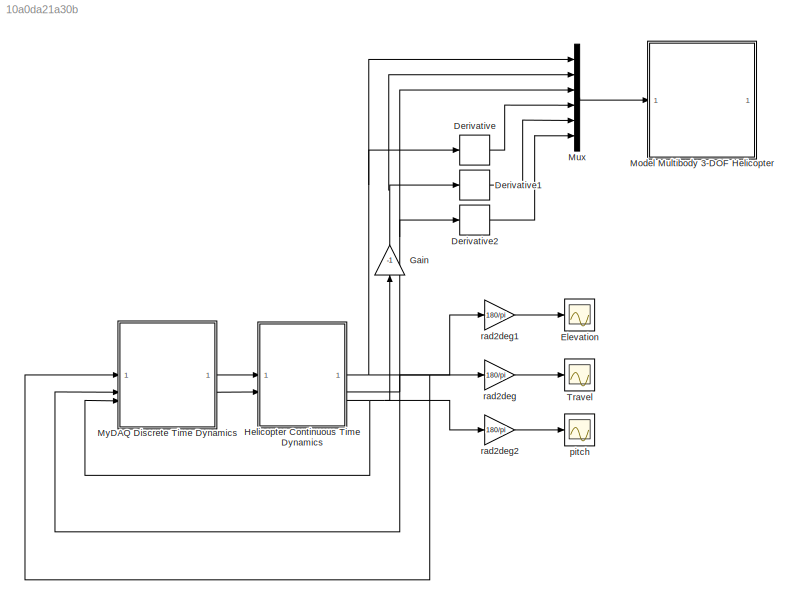
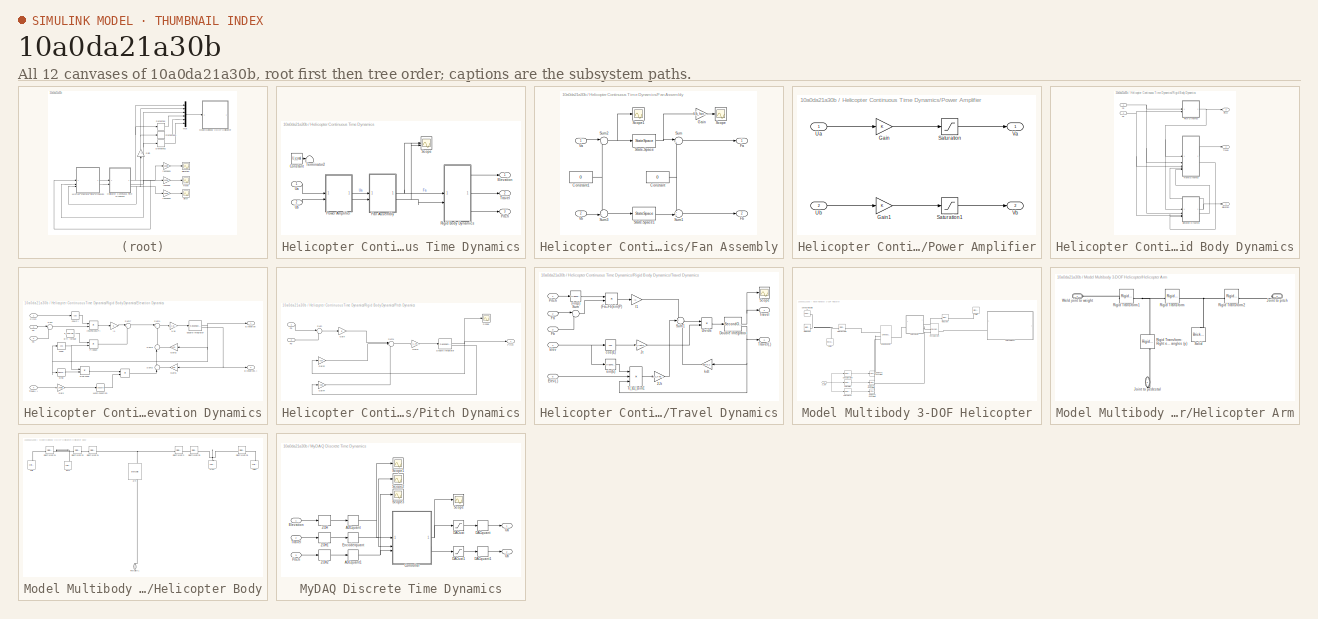
[diagram: thumbnail index - all 12 canvases of the model, root first then tree order]
MODEL slx_10a0da21a30b
KIND model
CONFIG AbsTol = auto
CONFIG EnableMultiTasking = on
CONFIG FixedStep = Ts
CONFIG MaxStep = auto
CONFIG MinStep = auto
CONFIG RelTol = 1e-5
CONFIG SampleTimeConstraint = Unconstrained
CONFIG SolverName = VariableStepAuto
CONFIG StartTime = 0.00
CONFIG StopTime = 60
BLOCK [Derivative] Derivative
  Commented = on
BLOCK [Derivative] Derivative1
  Commented = on
BLOCK [Derivative] Derivative2
  Commented = on
BLOCK [Scope] Elevation
  ActiveDisplayYMaximum = 169.97458635838461
  ActiveDisplayYMinimum = -193.06857315427078
  DataLogging = on
  DataLoggingDecimateData = on
  DataLoggingDecimation = 1
  DataLoggingSaveFormat = Structure With Time
  DataLoggingVariableName = elev
  Floating = off
  GraphicalSettings = {"Style":{"BackgroundColor":[0.12941176470588237,0.12941176470588237,0.12941176470588237],"AxesColor":[0.07058823529411765,0.07058823529411765,0.07058823529411765],"LabelsColor":[0.8509803921568627,0.8509803921568627,0.8509803921568627],"PreserveColors":false,"Visible":[true],"LineStyle":["-"],"LineWidth":[1.5],"BarWidth":[0.9],"LineColor":["auto"],"LineFaceAlpha":[1],"LineEdgeAlpha":[1],"Marker":...<+1967ch>
  MultipleDisplayCache = [{"MaxYLimMag":10,"MaxYLimReal":169.97458635838461,"MinYLimMag":0,"MinYLimReal":-193.06857315427078,"PlotAsMagnitudePhase":false,"ShowGrid":true,"ShowLegend":true,"Title":"%<SignalLabel>","YLabel":""}]
  NumInputPorts = 1
  ScopeFrameLocation = container
  ShowLegend = on
  TimeSpan = 60
  WasSavedAsWebScope = on
  WindowPosition = [320.000000,156.000000,1280.000000,768.000000,]
BLOCK [Gain] Gain
  Commented = on
  Gain = -1
  NameLocation = right
BLOCK [SubSystem] Helicopter Continuous Time Dynamics
BLOCK [Constant] Helicopter Continuous Time Dynamics/Constant
  Value = U_e_real
BLOCK [Outport] Helicopter Continuous Time Dynamics/Elevation
  NameLocation = top
BLOCK [SubSystem] Helicopter Continuous Time Dynamics/Fan Assembly
BLOCK [Constant] Helicopter Continuous Time Dynamics/Fan Assembly/Constant
  Value = 0
BLOCK [Constant] Helicopter Continuous Time Dynamics/Fan Assembly/Constant1
  Value = 0
BLOCK [Outport] Helicopter Continuous Time Dynamics/Fan Assembly/Fa
BLOCK [Outport] Helicopter Continuous Time Dynamics/Fan Assembly/Fb
  Port = 2
BLOCK [Gain] Helicopter Continuous Time Dynamics/Fan Assembly/Gain
  Gain = 1/k_fan * 180/pi
BLOCK [Scope] Helicopter Continuous Time Dynamics/Fan Assembly/Scope
  ActiveDisplayYMaximum = 1.7577416034783149
  ActiveDisplayYMinimum = -0.45366100581419094
  Floating = off
  GraphicalSettings = {"Style":{"BackgroundColor":[0.12941176470588237,0.12941176470588237,0.12941176470588237],"AxesColor":[0.07058823529411765,0.07058823529411765,0.07058823529411765],"LabelsColor":[0.8509803921568627,0.8509803921568627,0.8509803921568627],"PreserveColors":false,"Visible":[true],"LineStyle":["-"],"LineWidth":[1.5],"BarWidth":[0.9],"LineColor":["auto"],"LineFaceAlpha":[1],"LineEdgeAlpha":[1],"Marker":...<+1993ch>
  MultipleDisplayCache = [{"MaxYLimMag":1.7577416034783149,"MaxYLimReal":1.7577416034783149,"MinYLimMag":0,"MinYLimReal":-0.45366100581419094,"PlotAsMagnitudePhase":false,"ShowGrid":true,"ShowLegend":false,"Title":"%<SignalLabel>","YLabel":""}]
  NumInputPorts = 1
  ScopeFrameLocation = window
  WasSavedAsWebScope = on
  WindowPosition = [-1920.000000,25.000000,1921.000000,557.000000,]
BLOCK [Scope] Helicopter Continuous Time Dynamics/Fan Assembly/Scope1
  ActiveDisplayYMaximum = 7.5331444683603781
  ActiveDisplayYMinimum = -4.1681508848464635
  DataLoggingVariableName = ScopeData3
  Floating = off
  GraphicalSettings = {"AxesScalingProperties":{"AlignXAxis":"Center","AlignYAxis":"Center","AutoScaleXAxisLimits":false,"AxesScaling":"Manual","AxesScalingNumUpdates":10,"ExpandOnly":true,"ScaleAxesLimitsAtStop":false,"XAxisDataRange":100,"YAxisDataRange":80},"DisplayProperties":{"ColorOrder":["auto","auto","auto","auto","auto","auto","auto","auto","auto","auto","auto","auto","auto","auto","auto","auto","auto","auto",...<+2008ch>
  MultipleDisplayCache = [{"MaxYLimMag":0.039227171926382989,"MaxYLimReal":7.5331444683603781,"MinYLimMag":0,"MinYLimReal":-4.1681508848464635,"PlotAsMagnitudePhase":false,"ShowGrid":true,"ShowLegend":false,"Title":"%<SignalLabel>","YLabel":""}]
  NumInputPorts = 1
  ScopeFrameLocation = window
  WasSavedAsWebScope = on
  WindowPosition = [406.000000,160.000000,1029.000000,659.000000,]
BLOCK [StateSpace] Helicopter Continuous Time Dynamics/Fan Assembly/State-Space
  A = sys_fan.A
  B = sys_fan.B
  C = sys_fan.C
  D = sys_fan.D
  InitialCondition = 0
BLOCK [StateSpace] Helicopter Continuous Time Dynamics/Fan Assembly/State-Space1
  A = sys_fan.A
  B = sys_fan.B
  C = sys_fan.C
  D = sys_fan.D
  InitialCondition = 0
BLOCK [Sum] Helicopter Continuous Time Dynamics/Fan Assembly/Sum
  Inputs = |++
BLOCK [Sum] Helicopter Continuous Time Dynamics/Fan Assembly/Sum1
  Inputs = ++|
BLOCK [Sum] Helicopter Continuous Time Dynamics/Fan Assembly/Sum2
  Inputs = |+-
BLOCK [Sum] Helicopter Continuous Time Dynamics/Fan Assembly/Sum3
  Inputs = -+|
BLOCK [Inport] Helicopter Continuous Time Dynamics/Fan Assembly/Va
BLOCK [Inport] Helicopter Continuous Time Dynamics/Fan Assembly/Vb
  Port = 2
BLOCK [Outport] Helicopter Continuous Time Dynamics/Pitch
  Port = 3
BLOCK [SubSystem] Helicopter Continuous Time Dynamics/Power Amplifier
BLOCK [Gain] Helicopter Continuous Time Dynamics/Power Amplifier/Gain
BLOCK [Gain] Helicopter Continuous Time Dynamics/Power Amplifier/Gain1
BLOCK [Saturate] Helicopter Continuous Time Dynamics/Power Amplifier/Saturation
  LowerLimit = 0
  UpperLimit = amp_sat_u
BLOCK [Saturate] Helicopter Continuous Time Dynamics/Power Amplifier/Saturation1
  LowerLimit = 0
  UpperLimit = amp_sat_u
BLOCK [Inport] Helicopter Continuous Time Dynamics/Power Amplifier/Ua
BLOCK [Inport] Helicopter Continuous Time Dynamics/Power Amplifier/Ub
  Port = 2
BLOCK [Outport] Helicopter Continuous Time Dynamics/Power Amplifier/Va
BLOCK [Outport] Helicopter Continuous Time Dynamics/Power Amplifier/Vb
  Port = 2
BLOCK [SubSystem] Helicopter Continuous Time Dynamics/Rigid Body Dynamics
BLOCK [Outport] Helicopter Continuous Time Dynamics/Rigid Body Dynamics/Elevation
  NameLocation = top
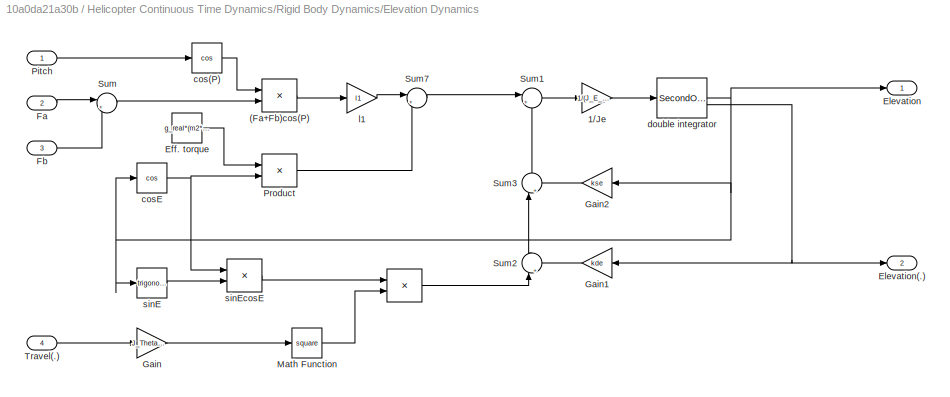
BLOCK [SubSystem] Helicopter Continuous Time Dynamics/Rigid Body Dynamics/Elevation Dynamics
BLOCK [Product] Helicopter Continuous Time Dynamics/Rigid Body Dynamics/Elevation Dynamics/ 
  InputSameDT = on
  OutDataTypeStr = Inherit: Same as first input
  RndMeth = Zero
  SaturateOnIntegerOverflow = on
BLOCK [Product] Helicopter Continuous Time Dynamics/Rigid Body Dynamics/Elevation Dynamics/(Fa+Fb)cos(P)
  InputSameDT = on
  OutDataTypeStr = Inherit: Same as first input
  RndMeth = Zero
  SaturateOnIntegerOverflow = on
BLOCK [Gain] Helicopter Continuous Time Dynamics/Rigid Body Dynamics/Elevation Dynamics/1//Je
  Gain = 1/(J_E_real)
  OutDataTypeStr = Inherit: Same as input
  ParamDataTypeStr = Inherit: Same as input
  SaturateOnIntegerOverflow = on
BLOCK [Constant] Helicopter Continuous Time Dynamics/Rigid Body Dynamics/Elevation Dynamics/Eff. torque
  Value = g_real*(m2*l3-2*m1*l1)
BLOCK [Outport] Helicopter Continuous Time Dynamics/Rigid Body Dynamics/Elevation Dynamics/Elevation
BLOCK [Outport] Helicopter Continuous Time Dynamics/Rigid Body Dynamics/Elevation Dynamics/Elevation(.)
  Port = 2
BLOCK [Inport] Helicopter Continuous Time Dynamics/Rigid Body Dynamics/Elevation Dynamics/Fa
  Port = 2
BLOCK [Inport] Helicopter Continuous Time Dynamics/Rigid Body Dynamics/Elevation Dynamics/Fb
  Port = 3
BLOCK [Gain] Helicopter Continuous Time Dynamics/Rigid Body Dynamics/Elevation Dynamics/Gain
  Gain = J_Theta_real
BLOCK [Gain] Helicopter Continuous Time Dynamics/Rigid Body Dynamics/Elevation Dynamics/Gain1
  Gain = kde
  NameLocation = top
BLOCK [Gain] Helicopter Continuous Time Dynamics/Rigid Body Dynamics/Elevation Dynamics/Gain2
  Gain = kse
  NameLocation = top
BLOCK [Math] Helicopter Continuous Time Dynamics/Rigid Body Dynamics/Elevation Dynamics/Math Function
  Operator = square
  SignedPower = on
BLOCK [Inport] Helicopter Continuous Time Dynamics/Rigid Body Dynamics/Elevation Dynamics/Pitch
BLOCK [Product] Helicopter Continuous Time Dynamics/Rigid Body Dynamics/Elevation Dynamics/Product
  InputSameDT = on
  OutDataTypeStr = Inherit: Same as first input
  RndMeth = Zero
  SaturateOnIntegerOverflow = on
BLOCK [Sum] Helicopter Continuous Time Dynamics/Rigid Body Dynamics/Elevation Dynamics/Sum
  InputSameDT = on
  Inputs = |++
  OutDataTypeStr = Inherit: Same as first input
  SaturateOnIntegerOverflow = on
BLOCK [Sum] Helicopter Continuous Time Dynamics/Rigid Body Dynamics/Elevation Dynamics/Sum1
  InputSameDT = on
  Inputs = |+-
  OutDataTypeStr = Inherit: Same as first input
  SaturateOnIntegerOverflow = on
BLOCK [Sum] Helicopter Continuous Time Dynamics/Rigid Body Dynamics/Elevation Dynamics/Sum2
  Inputs = |++
  NameLocation = right
BLOCK [Sum] Helicopter Continuous Time Dynamics/Rigid Body Dynamics/Elevation Dynamics/Sum3
  Inputs = |++
  NameLocation = right
BLOCK [Sum] Helicopter Continuous Time Dynamics/Rigid Body Dynamics/Elevation Dynamics/Sum7
  InputSameDT = on
  Inputs = |++
  OutDataTypeStr = Inherit: Same as first input
  SaturateOnIntegerOverflow = on
BLOCK [Inport] Helicopter Continuous Time Dynamics/Rigid Body Dynamics/Elevation Dynamics/Travel(.)
  Port = 4
BLOCK [Trigonometry] Helicopter Continuous Time Dynamics/Rigid Body Dynamics/Elevation Dynamics/cos(P)
  Operator = cos
BLOCK [Trigonometry] Helicopter Continuous Time Dynamics/Rigid Body Dynamics/Elevation Dynamics/cosE
  Operator = cos
BLOCK [SecondOrderIntegrator] Helicopter Continuous Time Dynamics/Rigid Body Dynamics/Elevation Dynamics/double integrator
  ICX = E0
  LimitX = on
  LowerLimitDXDT = -2*pi
  LowerLimitX = E0
  UpperLimitDXDT = 2*pi
  UpperLimitX = e_lim_u
BLOCK [Gain] Helicopter Continuous Time Dynamics/Rigid Body Dynamics/Elevation Dynamics/l1
  Gain = l1
  OutDataTypeStr = Inherit: Same as input
  ParamDataTypeStr = Inherit: Same as input
  SaturateOnIntegerOverflow = on
BLOCK [Trigonometry] Helicopter Continuous Time Dynamics/Rigid Body Dynamics/Elevation Dynamics/sinE
BLOCK [Product] Helicopter Continuous Time Dynamics/Rigid Body Dynamics/Elevation Dynamics/sinEcosE
  InputSameDT = on
  OutDataTypeStr = Inherit: Same as first input
  RndMeth = Zero
  SaturateOnIntegerOverflow = on
BLOCK [Inport] Helicopter Continuous Time Dynamics/Rigid Body Dynamics/Fa
BLOCK [Inport] Helicopter Continuous Time Dynamics/Rigid Body Dynamics/Fb
  Port = 2
BLOCK [Outport] Helicopter Continuous Time Dynamics/Rigid Body Dynamics/Pitch
  Port = 3
BLOCK [SubSystem] Helicopter Continuous Time Dynamics/Rigid Body Dynamics/Pitch Dynamics
BLOCK [SecondOrderIntegrator] Helicopter Continuous Time Dynamics/Rigid Body Dynamics/Pitch Dynamics/Double Integrator
  ICX = P0
  LimitX = on
  LowerLimitX = p_lim_l
  UpperLimitX = p_lim_u
BLOCK [Inport] Helicopter Continuous Time Dynamics/Rigid Body Dynamics/Pitch Dynamics/Fa
BLOCK [Inport] Helicopter Continuous Time Dynamics/Rigid Body Dynamics/Pitch Dynamics/Fb
  Port = 2
BLOCK [Gain] Helicopter Continuous Time Dynamics/Rigid Body Dynamics/Pitch Dynamics/Gain
  Gain = l2
BLOCK [Gain] Helicopter Continuous Time Dynamics/Rigid Body Dynamics/Pitch Dynamics/Gain1
  Gain = 1/(J_Psi_real*.05)
BLOCK [Gain] Helicopter Continuous Time Dynamics/Rigid Body Dynamics/Pitch Dynamics/Gain2
  Gain = ksp
BLOCK [Gain] Helicopter Continuous Time Dynamics/Rigid Body Dynamics/Pitch Dynamics/Gain4
  Gain = kdp
BLOCK [Outport] Helicopter Continuous Time Dynamics/Rigid Body Dynamics/Pitch Dynamics/Pitch
BLOCK [Scope] Helicopter Continuous Time Dynamics/Rigid Body Dynamics/Pitch Dynamics/Scope
  ActiveDisplayYMaximum = 1
  ActiveDisplayYMinimum = -1
  DataLoggingVariableName = ScopeData2
  Floating = off
  GraphicalSettings = {"Style":{"BackgroundColor":[0.12941176470588237,0.12941176470588237,0.12941176470588237],"AxesColor":[0.07058823529411765,0.07058823529411765,0.07058823529411765],"LabelsColor":[0.8509803921568627,0.8509803921568627,0.8509803921568627],"PreserveColors":false,"Visible":[true],"LineStyle":["-"],"LineWidth":[1.5],"BarWidth":[0.9],"LineColor":["auto"],"LineFaceAlpha":[1],"LineEdgeAlpha":[1],"Marker":...<+1922ch>
  MultipleDisplayCache = [{"MaxYLimMag":1,"MaxYLimReal":1,"MinYLimMag":0,"MinYLimReal":-1,"PlotAsMagnitudePhase":false,"ShowGrid":true,"ShowLegend":false,"Title":"%<SignalLabel>","YLabel":""}]
  NumInputPorts = 1
  ScopeFrameLocation = window
  WasSavedAsWebScope = on
  WindowPosition = [451.000000,468.000000,560.000000,420.000000,]
BLOCK [Sum] Helicopter Continuous Time Dynamics/Rigid Body Dynamics/Pitch Dynamics/Sum
  Inputs = -+
BLOCK [Sum] Helicopter Continuous Time Dynamics/Rigid Body Dynamics/Pitch Dynamics/Sum1
  Inputs = |---
BLOCK [Outport] Helicopter Continuous Time Dynamics/Rigid Body Dynamics/Travel
  Port = 2
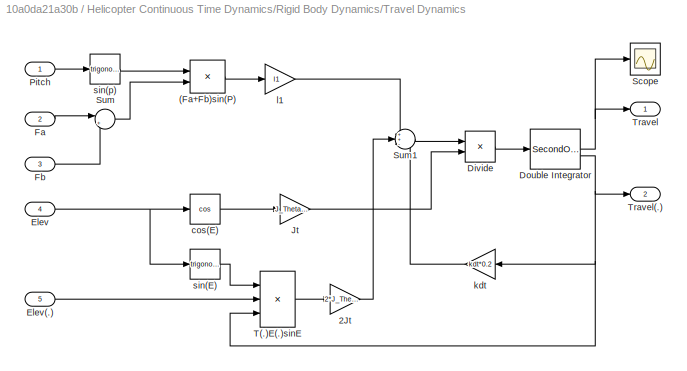
BLOCK [SubSystem] Helicopter Continuous Time Dynamics/Rigid Body Dynamics/Travel Dynamics
BLOCK [Product] Helicopter Continuous Time Dynamics/Rigid Body Dynamics/Travel Dynamics/(Fa+Fb)sin(P)
  InputSameDT = on
  OutDataTypeStr = Inherit: Same as first input
  RndMeth = Zero
  SaturateOnIntegerOverflow = on
BLOCK [Gain] Helicopter Continuous Time Dynamics/Rigid Body Dynamics/Travel Dynamics/2Jt
  Gain = 2*J_Theta_real
  OutDataTypeStr = Inherit: Same as input
  ParamDataTypeStr = Inherit: Same as input
  SaturateOnIntegerOverflow = on
BLOCK [Product] Helicopter Continuous Time Dynamics/Rigid Body Dynamics/Travel Dynamics/Divide
  Inputs = */
BLOCK [SecondOrderIntegrator] Helicopter Continuous Time Dynamics/Rigid Body Dynamics/Travel Dynamics/Double Integrator
  ICX = T0
  LimitDXDT = on
  LowerLimitDXDT = -2
  LowerLimitX = 0
  UpperLimitDXDT = 2
  UpperLimitX = 1
BLOCK [Inport] Helicopter Continuous Time Dynamics/Rigid Body Dynamics/Travel Dynamics/Elev
  Port = 4
BLOCK [Inport] Helicopter Continuous Time Dynamics/Rigid Body Dynamics/Travel Dynamics/Elev(.)
  Port = 5
BLOCK [Inport] Helicopter Continuous Time Dynamics/Rigid Body Dynamics/Travel Dynamics/Fa
  Port = 2
BLOCK [Inport] Helicopter Continuous Time Dynamics/Rigid Body Dynamics/Travel Dynamics/Fb
  Port = 3
BLOCK [Gain] Helicopter Continuous Time Dynamics/Rigid Body Dynamics/Travel Dynamics/Jt
  Gain = J_Theta_real
  OutDataTypeStr = Inherit: Same as input
  ParamDataTypeStr = Inherit: Same as input
  SaturateOnIntegerOverflow = on
BLOCK [Inport] Helicopter Continuous Time Dynamics/Rigid Body Dynamics/Travel Dynamics/Pitch
BLOCK [Scope] Helicopter Continuous Time Dynamics/Rigid Body Dynamics/Travel Dynamics/Scope
  ActiveDisplayYMaximum = 1
  ActiveDisplayYMinimum = -1
  DataLoggingVariableName = ScopeData4
  Floating = off
  GraphicalSettings = {"Style":{"BackgroundColor":[0.12941176470588237,0.12941176470588237,0.12941176470588237],"AxesColor":[0.07058823529411765,0.07058823529411765,0.07058823529411765],"LabelsColor":[0.8509803921568627,0.8509803921568627,0.8509803921568627],"PreserveColors":false,"Visible":[true],"LineStyle":["-"],"LineWidth":[1.5],"BarWidth":[0.9],"LineColor":["auto"],"LineFaceAlpha":[1],"LineEdgeAlpha":[1],"Marker":...<+1920ch>
  MultipleDisplayCache = [{"MaxYLimMag":1,"MaxYLimReal":1,"MinYLimMag":0,"MinYLimReal":-1,"PlotAsMagnitudePhase":false,"ShowGrid":true,"ShowLegend":false,"Title":"%<SignalLabel>","YLabel":""}]
  NumInputPorts = 1
  ScopeFrameLocation = window
  WasSavedAsWebScope = on
  WindowPosition = [712.000000,414.000000,560.000000,420.000000,]
BLOCK [Sum] Helicopter Continuous Time Dynamics/Rigid Body Dynamics/Travel Dynamics/Sum
  InputSameDT = on
  Inputs = |++
  OutDataTypeStr = Inherit: Same as first input
  SaturateOnIntegerOverflow = on
BLOCK [Sum] Helicopter Continuous Time Dynamics/Rigid Body Dynamics/Travel Dynamics/Sum1
  InputSameDT = on
  Inputs = ++-
  OutDataTypeStr = Inherit: Same as first input
  SaturateOnIntegerOverflow = on
BLOCK [Product] Helicopter Continuous Time Dynamics/Rigid Body Dynamics/Travel Dynamics/T(.)E(.)sinE
  InputSameDT = on
  Inputs = 3
  OutDataTypeStr = Inherit: Same as first input
  RndMeth = Zero
  SaturateOnIntegerOverflow = on
BLOCK [Outport] Helicopter Continuous Time Dynamics/Rigid Body Dynamics/Travel Dynamics/Travel
BLOCK [Outport] Helicopter Continuous Time Dynamics/Rigid Body Dynamics/Travel Dynamics/Travel(.)
  Port = 2
BLOCK [Trigonometry] Helicopter Continuous Time Dynamics/Rigid Body Dynamics/Travel Dynamics/cos(E)
  Operator = cos
BLOCK [Gain] Helicopter Continuous Time Dynamics/Rigid Body Dynamics/Travel Dynamics/kdt
  Gain = kdt*0.2
  NameLocation = top
  OutDataTypeStr = Inherit: Same as input
  ParamDataTypeStr = Inherit: Same as input
  SaturateOnIntegerOverflow = on
BLOCK [Gain] Helicopter Continuous Time Dynamics/Rigid Body Dynamics/Travel Dynamics/l1
  Gain = l1
  OutDataTypeStr = Inherit: Same as input
  ParamDataTypeStr = Inherit: Same as input
  SaturateOnIntegerOverflow = on
BLOCK [Trigonometry] Helicopter Continuous Time Dynamics/Rigid Body Dynamics/Travel Dynamics/sin(E)
BLOCK [Trigonometry] Helicopter Continuous Time Dynamics/Rigid Body Dynamics/Travel Dynamics/sin(p)
BLOCK [Scope] Helicopter Continuous Time Dynamics/Scope
  ActiveDisplayYMaximum = 1
  ActiveDisplayYMinimum = -1
  DataLoggingVariableName = ScopeData5
  Floating = off
  GraphicalSettings = {"Style":{"BackgroundColor":[0.12941176470588237,0.12941176470588237,0.12941176470588237],"AxesColor":[0.07058823529411765,0.07058823529411765,0.07058823529411765],"LabelsColor":[0.8509803921568627,0.8509803921568627,0.8509803921568627],"PreserveColors":false,"Visible":[true,true],"LineStyle":["-","-"],"LineWidth":[1.5,1.5],"BarWidth":[0.9,0.9],"LineColor":["auto","auto"],"LineFaceAlpha":[1,1],"Li...<+2129ch>
  MultipleDisplayCache = [{"MaxYLimMag":1,"MaxYLimReal":1,"MinYLimMag":0,"MinYLimReal":-1,"PlotAsMagnitudePhase":false,"ShowGrid":true,"ShowLegend":true,"Title":"%<SignalLabel>","YLabel":""}]
  NumInputPorts = 2
  ScopeFrameLocation = window
  ShowLegend = on
  WasSavedAsWebScope = on
  WindowPosition = [-37.000000,447.000000,1918.000000,501.000000,]
BLOCK [Terminator] Helicopter Continuous Time Dynamics/Terminator2
BLOCK [Outport] Helicopter Continuous Time Dynamics/Travel
  Port = 2
BLOCK [Inport] Helicopter Continuous Time Dynamics/Ua
BLOCK [Inport] Helicopter Continuous Time Dynamics/Ub
  Port = 2
BLOCK [SubSystem] Model Multibody 3-DOF Helicopter
  Commented = on
BLOCK [SubSystem] Model Multibody 3-DOF Helicopter/Helicopter Arm
BLOCK [PMIOPort] Model Multibody 3-DOF Helicopter/Helicopter Arm/Joint to pedestal
  NameLocation = left
  Port = 2
  Side = Right
BLOCK [PMIOPort] Model Multibody 3-DOF Helicopter/Helicopter Arm/Joint to pitch
  NameLocation = top
  Port = 3
  Side = Left
BLOCK [Reference] Model Multibody 3-DOF Helicopter/Helicopter Arm/Rigid Transform  REF=sm_lib/Frames and
Transforms/Rigid
Transform
  SourceBlock = sm_lib/Frames and\nTransforms/Rigid\nTransform
  SourceType = Rigid\nTransform
BLOCK [Reference] Model Multibody 3-DOF Helicopter/Helicopter Arm/Rigid Transform1  REF=sm_lib/Frames and
Transforms/Rigid
Transform
  SourceBlock = sm_lib/Frames and\nTransforms/Rigid\nTransform
  SourceType = Rigid\nTransform
BLOCK [Reference] Model Multibody 3-DOF Helicopter/Helicopter Arm/Rigid Transform2  REF=sm_lib/Frames and
Transforms/Rigid
Transform
  SourceBlock = sm_lib/Frames and\nTransforms/Rigid\nTransform
  SourceType = Rigid\nTransform
BLOCK [Reference] Model Multibody 3-DOF Helicopter/Helicopter Arm/Rigid Transform: Right elevation (x) & Travel angles (y)  REF=sm_lib/Frames and
Transforms/Rigid
Transform
  NameLocation = right
  SourceBlock = sm_lib/Frames and\nTransforms/Rigid\nTransform
  SourceType = Rigid\nTransform
BLOCK [Reference] Model Multibody 3-DOF Helicopter/Helicopter Arm/Solid  REF=sm_lib/Body Elements/Brick Solid
  NameLocation = right
  SourceBlock = sm_lib/Body Elements/Brick Solid
  SourceType = Brick Solid
BLOCK [PMIOPort] Model Multibody 3-DOF Helicopter/Helicopter Arm/Weld joint to weight
  NameLocation = top
  Side = Left
BLOCK [SubSystem] Model Multibody 3-DOF Helicopter/Helicopter Body
BLOCK [Reference] Model Multibody 3-DOF Helicopter/Helicopter Body/Back  REF=sm_lib/Body Elements/Cylindrical Solid
  NameLocation = right
  SourceBlock = sm_lib/Body Elements/Cylindrical Solid
  SourceType = Cylindrical Solid
BLOCK [Reference] Model Multibody 3-DOF Helicopter/Helicopter Body/Front  REF=sm_lib/Body Elements/Cylindrical Solid
  NameLocation = right
  SourceBlock = sm_lib/Body Elements/Cylindrical Solid
  SourceType = Cylindrical Solid
BLOCK [PMIOPort] Model Multibody 3-DOF Helicopter/Helicopter Body/Rho (pitch)1
  NameLocation = right
  Side = Left
BLOCK [Reference] Model Multibody 3-DOF Helicopter/Helicopter Body/Rigid Transform  REF=sm_lib/Frames and
Transforms/Rigid
Transform
  SourceBlock = sm_lib/Frames and\nTransforms/Rigid\nTransform
  SourceType = Rigid\nTransform
BLOCK [Reference] Model Multibody 3-DOF Helicopter/Helicopter Body/Rigid Transform1  REF=sm_lib/Frames and
Transforms/Rigid
Transform
  SourceBlock = sm_lib/Frames and\nTransforms/Rigid\nTransform
  SourceType = Rigid\nTransform
BLOCK [Reference] Model Multibody 3-DOF Helicopter/Helicopter Body/Rigid Transform2  REF=sm_lib/Frames and
Transforms/Rigid
Transform
  SourceBlock = sm_lib/Frames and\nTransforms/Rigid\nTransform
  SourceType = Rigid\nTransform
BLOCK [Reference] Model Multibody 3-DOF Helicopter/Helicopter Body/Rigid Transform3  REF=sm_lib/Frames and
Transforms/Rigid
Transform
  SourceBlock = sm_lib/Frames and\nTransforms/Rigid\nTransform
  SourceType = Rigid\nTransform
BLOCK [Reference] Model Multibody 3-DOF Helicopter/Helicopter Body/Rigid Transform4  REF=sm_lib/Frames and
Transforms/Rigid
Transform
  SourceBlock = sm_lib/Frames and\nTransforms/Rigid\nTransform
  SourceType = Rigid\nTransform
BLOCK [Reference] Model Multibody 3-DOF Helicopter/Helicopter Body/Rigid Transform5  REF=sm_lib/Frames and
Transforms/Rigid
Transform
  SourceBlock = sm_lib/Frames and\nTransforms/Rigid\nTransform
  SourceType = Rigid\nTransform
BLOCK [Reference] Model Multibody 3-DOF Helicopter/Helicopter Body/Solid  REF=sm_lib/Body Elements/Cylindrical Solid
  NameLocation = right
  SourceBlock = sm_lib/Body Elements/Cylindrical Solid
  SourceType = Cylindrical Solid
BLOCK [Reference] Model Multibody 3-DOF Helicopter/Helicopter Body/Solid1  REF=sm_lib/Body Elements/Cylindrical Solid
  NameLocation = right
  SourceBlock = sm_lib/Body Elements/Cylindrical Solid
  SourceType = Cylindrical Solid
BLOCK [Reference] Model Multibody 3-DOF Helicopter/Helicopter Body/arm  REF=sm_lib/Body Elements/Brick Solid
  NameLocation = right
  SourceBlock = sm_lib/Body Elements/Brick Solid
  SourceType = Brick Solid
BLOCK [Reference] Model Multibody 3-DOF Helicopter/Revolute Joint  REF=sm_lib/Joints/Revolute Joint
  SourceBlock = sm_lib/Joints/Revolute Joint
  SourceType = Revolute Joint
BLOCK [Reference] Model Multibody 3-DOF Helicopter/Rigid-Transform  REF=sm_lib/Frames and
Transforms/Rigid
Transform
  SourceBlock = sm_lib/Frames and\nTransforms/Rigid\nTransform
  SourceType = Rigid\nTransform
BLOCK [Selector] Model Multibody 3-DOF Helicopter/Select Elevation
  IndexOptions = Index vector (dialog)
  Indices = 1
  InputPortWidth = 6
  OutputSizes = 1
BLOCK [Selector] Model Multibody 3-DOF Helicopter/Select Pitch
  IndexOptions = Index vector (dialog)
  Indices = 2
  InputPortWidth = 6
  OutputSizes = 1
BLOCK [Selector] Model Multibody 3-DOF Helicopter/Select Travel
  IndexOptions = Index vector (dialog)
  Indices = 3
  InputPortWidth = 6
  OutputSizes = 1
BLOCK [Reference] Model Multibody 3-DOF Helicopter/Simulink-PS Converter2  REF=nesl_utility/Simulink-PS
Converter
  SourceBlock = nesl_utility/Simulink-PS\nConverter
  SourceType = Simulink-PS\nConverter
BLOCK [Reference] Model Multibody 3-DOF Helicopter/Simulink-PS Converter3  REF=nesl_utility/Simulink-PS
Converter
  SourceBlock = nesl_utility/Simulink-PS\nConverter
  SourceType = Simulink-PS\nConverter
BLOCK [Reference] Model Multibody 3-DOF Helicopter/Simulink-PS Converter4  REF=nesl_utility/Simulink-PS
Converter
  SourceBlock = nesl_utility/Simulink-PS\nConverter
  SourceType = Simulink-PS\nConverter
BLOCK [Reference] Model Multibody 3-DOF Helicopter/Solid  REF=sm_lib/Body Elements/Brick Solid
  NameLocation = right
  SourceBlock = sm_lib/Body Elements/Brick Solid
  SourceType = Brick Solid
BLOCK [Reference] Model Multibody 3-DOF Helicopter/Solid1  REF=sm_lib/Body Elements/Revolved Solid
  NameLocation = right
  SourceBlock = sm_lib/Body Elements/Revolved Solid
  SourceType = Revolved Solid
BLOCK [Reference] Model Multibody 3-DOF Helicopter/Solver Configuration  REF=nesl_utility/Solver
Configuration
  SourceBlock = nesl_utility/Solver\nConfiguration
  SourceType = Solver\nConfiguration
BLOCK [Reference] Model Multibody 3-DOF Helicopter/Universal Joint  REF=sm_lib/Joints/Universal
Joint
  SourceBlock = sm_lib/Joints/Universal\nJoint
  SourceType = Universal\nJoint
BLOCK [Reference] Model Multibody 3-DOF Helicopter/Weld Joint  REF=sm_lib/Joints/Weld Joint
  SourceBlock = sm_lib/Joints/Weld Joint
  SourceType = Weld Joint
BLOCK [Reference] Model Multibody 3-DOF Helicopter/World Frame  REF=sm_lib/Frames and
Transforms/World Frame
  SourceBlock = sm_lib/Frames and\nTransforms/World Frame
  SourceType = World Frame
BLOCK [Inport] Model Multibody 3-DOF Helicopter/X_sim
BLOCK [Mux] Mux
  Commented = on
  DisplayOption = bar
  Inputs = 6
BLOCK [SubSystem] MyDAQ Discrete Time Dynamics
BLOCK [Quantizer] MyDAQ Discrete Time Dynamics/ADCquant
  QuantizationInterval = ADC_Vres
  SampleTime = Ts
BLOCK [Quantizer] MyDAQ Discrete Time Dynamics/ADCquant1
  QuantizationInterval = ADC_Vres
  SampleTime = Ts
BLOCK [SubSystem] MyDAQ Discrete Time Dynamics/Controller
  ReferencedSubsystem = MPC
BLOCK [Quantizer] MyDAQ Discrete Time Dynamics/DACquant
  QuantizationInterval = DAC_Vres
  SampleTime = Ts
BLOCK [Quantizer] MyDAQ Discrete Time Dynamics/DACquant1
  QuantizationInterval = DAC_Vres
  SampleTime = Ts
BLOCK [Saturate] MyDAQ Discrete Time Dynamics/DACsat
  LowerLimit = 0
  SampleTime = Ts
  UpperLimit = DAC_lim_u
BLOCK [Saturate] MyDAQ Discrete Time Dynamics/DACsat1
  LowerLimit = 0
  SampleTime = Ts
  UpperLimit = DAC_lim_u
BLOCK [Inport] MyDAQ Discrete Time Dynamics/Elevation
BLOCK [Quantizer] MyDAQ Discrete Time Dynamics/Encoderquant
  QuantizationInterval = Encoder_res
  SampleTime = Ts
BLOCK [Inport] MyDAQ Discrete Time Dynamics/Pitch
  Port = 3
BLOCK [Scope] MyDAQ Discrete Time Dynamics/Scope
  ActiveDisplayYMaximum = 10.706688231224366
  ActiveDisplayYMinimum = -2.6605476935057473
  DataLoggingVariableName = ScopeData1
  Floating = off
  GraphicalSettings = {"AxesScalingProperties":{"AlignXAxis":"Center","AlignYAxis":"Center","AutoScaleXAxisLimits":false,"AxesScaling":"Manual","AxesScalingNumUpdates":10,"ExpandOnly":true,"ScaleAxesLimitsAtStop":false,"XAxisDataRange":100,"YAxisDataRange":80},"DisplayProperties":{"ColorOrder":["auto","auto","auto","auto","auto","auto","auto","auto","auto","auto","auto","auto","auto","auto","auto","auto","auto","auto",...<+2054ch>
  MultipleDisplayCache = [{"MaxYLimMag":8.7581940988062623,"MaxYLimReal":10.706688231224366,"MinYLimMag":1.669263488809076,"MinYLimReal":-2.6605476935057473,"PlotAsMagnitudePhase":false,"ShowGrid":true,"ShowLegend":false,"Title":"%<SignalLabel>","YLabel":""}]
  NumInputPorts = 1
  ScopeFrameLocation = window
  WasSavedAsWebScope = on
  WindowPosition = [376.000000,214.000000,1357.000000,605.000000,]
BLOCK [Scope] MyDAQ Discrete Time Dynamics/Scope1
  ActiveDisplayYMaximum = 1.8291802955314285
  ActiveDisplayYMinimum = -1.3085329717356646
  DataLoggingVariableName = ScopeData2
  Floating = off
  GraphicalSettings = {"Style":{"BackgroundColor":[0.12941176470588237,0.12941176470588237,0.12941176470588237],"AxesColor":[0.07058823529411765,0.07058823529411765,0.07058823529411765],"LabelsColor":[0.8509803921568627,0.8509803921568627,0.8509803921568627],"PreserveColors":false,"Visible":[true],"LineStyle":["-"],"LineWidth":[1.5],"BarWidth":[0.9],"LineColor":["auto"],"LineFaceAlpha":[1],"LineEdgeAlpha":[1],"Marker":...<+2003ch>
  MultipleDisplayCache = [{"MaxYLimMag":0.93423361562523843,"MaxYLimReal":1.8291802955314285,"MinYLimMag":0,"MinYLimReal":-1.3085329717356646,"PlotAsMagnitudePhase":false,"ShowGrid":true,"ShowLegend":false,"Title":"%<SignalLabel>","YLabel":""}]
  NumInputPorts = 1
  ScopeFrameLocation = window
  WasSavedAsWebScope = on
  WindowPosition = [105.000000,396.000000,560.000000,420.000000,]
BLOCK [Scope] MyDAQ Discrete Time Dynamics/Scope2
  ActiveDisplayYMaximum = 1
  ActiveDisplayYMinimum = -1
  DataLoggingVariableName = ScopeData1
  Floating = off
  GraphicalSettings = {"Style":{"BackgroundColor":[0.12941176470588237,0.12941176470588237,0.12941176470588237],"AxesColor":[0.07058823529411765,0.07058823529411765,0.07058823529411765],"LabelsColor":[0.8509803921568627,0.8509803921568627,0.8509803921568627],"PreserveColors":false,"Visible":[true],"LineStyle":["-"],"LineWidth":[1.5],"BarWidth":[0.9],"LineColor":["auto"],"LineFaceAlpha":[1],"LineEdgeAlpha":[1],"Marker":...<+1908ch>
  MultipleDisplayCache = [{"MaxYLimMag":1,"MaxYLimReal":1,"MinYLimMag":0,"MinYLimReal":-1,"PlotAsMagnitudePhase":false,"ShowGrid":true,"ShowLegend":false,"Title":"%<SignalLabel>","YLabel":""}]
  NumInputPorts = 1
  ScopeFrameLocation = window
  WasSavedAsWebScope = on
  WindowPosition = [105.000000,396.000000,560.000000,420.000000,]
BLOCK [Scope] MyDAQ Discrete Time Dynamics/Scope3
  ActiveDisplayYMaximum = 1
  ActiveDisplayYMinimum = -1
  DataLoggingVariableName = ScopeData2
  Floating = off
  GraphicalSettings = {"Style":{"BackgroundColor":[0.12941176470588237,0.12941176470588237,0.12941176470588237],"AxesColor":[0.07058823529411765,0.07058823529411765,0.07058823529411765],"LabelsColor":[0.8509803921568627,0.8509803921568627,0.8509803921568627],"PreserveColors":false,"Visible":[true],"LineStyle":["-"],"LineWidth":[1.5],"BarWidth":[0.9],"LineColor":["auto"],"LineFaceAlpha":[1],"LineEdgeAlpha":[1],"Marker":...<+1902ch>
  MultipleDisplayCache = [{"MaxYLimMag":1,"MaxYLimReal":1,"MinYLimMag":0,"MinYLimReal":-1,"PlotAsMagnitudePhase":false,"ShowGrid":true,"ShowLegend":false,"Title":"%<SignalLabel>","YLabel":""}]
  NumInputPorts = 1
  ScopeFrameLocation = window
  WasSavedAsWebScope = on
  WindowPosition = [105.000000,396.000000,560.000000,420.000000,]
BLOCK [Inport] MyDAQ Discrete Time Dynamics/Travel
  Port = 2
BLOCK [Outport] MyDAQ Discrete Time Dynamics/Ua
BLOCK [Outport] MyDAQ Discrete Time Dynamics/Ub
  Port = 2
BLOCK [ZeroOrderHold] MyDAQ Discrete Time Dynamics/ZOH
  SampleTime = Ts
BLOCK [ZeroOrderHold] MyDAQ Discrete Time Dynamics/ZOH1
  SampleTime = Ts
BLOCK [ZeroOrderHold] MyDAQ Discrete Time Dynamics/ZOH2
  SampleTime = Ts
BLOCK [Scope] Travel
  ActiveDisplayYMaximum = 244.06083414149748
  ActiveDisplayYMinimum = -54.931508741530621
  DataLogging = on
  DataLoggingDecimateData = on
  DataLoggingDecimation = 1
  DataLoggingSaveFormat = Structure With Time
  DataLoggingVariableName = trav
  Floating = off
  GraphicalSettings = {"Style":{"BackgroundColor":[0.12941176470588237,0.12941176470588237,0.12941176470588237],"AxesColor":[0.07058823529411765,0.07058823529411765,0.07058823529411765],"LabelsColor":[0.8509803921568627,0.8509803921568627,0.8509803921568627],"PreserveColors":false,"Visible":[true],"LineStyle":["-"],"LineWidth":[1.5],"BarWidth":[0.9],"LineColor":["auto"],"LineFaceAlpha":[1],"LineEdgeAlpha":[1],"Marker":...<+1999ch>
  MultipleDisplayCache = [{"MaxYLimMag":213.23624642294445,"MaxYLimReal":244.06083414149748,"MinYLimMag":0,"MinYLimReal":-54.931508741530621,"PlotAsMagnitudePhase":false,"ShowGrid":true,"ShowLegend":false,"Title":"%<SignalLabel>","YLabel":""}]
  NumInputPorts = 1
  ScopeFrameLocation = window
  TimeSpan = 60
  WasSavedAsWebScope = on
  WindowPosition = [481.000000,304.000000,958.000000,472.000000,]
BLOCK [Scope] pitch
  ActiveDisplayYMaximum = 197.22827580727838
  ActiveDisplayYMinimum = -104.48552614092141
  DataLogging = on
  DataLoggingDecimateData = on
  DataLoggingDecimation = 1
  DataLoggingSaveFormat = Structure With Time
  DataLoggingVariableName = pitch
  Floating = off
  GraphicalSettings = {"Style":{"BackgroundColor":[0.12941176470588237,0.12941176470588237,0.12941176470588237],"AxesColor":[0.07058823529411765,0.07058823529411765,0.07058823529411765],"LabelsColor":[0.8509803921568627,0.8509803921568627,0.8509803921568627],"PreserveColors":false,"Visible":[true],"LineStyle":["-"],"LineWidth":[1.5],"BarWidth":[0.9],"LineColor":["auto"],"LineFaceAlpha":[1],"LineEdgeAlpha":[1],"Marker":...<+1971ch>
  MultipleDisplayCache = [{"MaxYLimMag":10,"MaxYLimReal":197.22827580727838,"MinYLimMag":0,"MinYLimReal":-104.48552614092141,"PlotAsMagnitudePhase":false,"ShowGrid":true,"ShowLegend":false,"Title":"%<SignalLabel>","YLabel":""}]
  NumInputPorts = 1
  ScopeFrameLocation = window
  TimeSpan = 60
  WasSavedAsWebScope = on
  WindowPosition = [-1918.000000,50.000000,958.000000,484.000000,]
BLOCK [Gain] rad2deg
  Gain = 180/pi
  OutDataTypeStr = Inherit: Same as input
  ParamDataTypeStr = Inherit: Same as input
  SaturateOnIntegerOverflow = on
BLOCK [Gain] rad2deg1
  Gain = 180/pi
  OutDataTypeStr = Inherit: Same as input
  ParamDataTypeStr = Inherit: Same as input
  SaturateOnIntegerOverflow = on
BLOCK [Gain] rad2deg2
  Gain = 180/pi
  OutDataTypeStr = Inherit: Same as input
  ParamDataTypeStr = Inherit: Same as input
  SaturateOnIntegerOverflow = on
LINE Derivative1:1 -> Mux:5
LINE Derivative2:1 -> Mux:6
LINE Derivative:1 -> Mux:4
NET Gain:1 -> Derivative1:1, Mux:2
LINE Helicopter Continuous Time Dynamics/Constant:1 -> Helicopter Continuous Time Dynamics/Terminator2:1
NET Helicopter Continuous Time Dynamics/Fan Assembly/Constant1:1 -> Helicopter Continuous Time Dynamics/Fan Assembly/Sum2:2, Helicopter Continuous Time Dynamics/Fan Assembly/Sum3:1
NET Helicopter Continuous Time Dynamics/Fan Assembly/Constant:1 -> Helicopter Continuous Time Dynamics/Fan Assembly/Sum1:1, Helicopter Continuous Time Dynamics/Fan Assembly/Sum:2
LINE Helicopter Continuous Time Dynamics/Fan Assembly/Gain:1 -> Helicopter Continuous Time Dynamics/Fan Assembly/Scope:1
LINE Helicopter Continuous Time Dynamics/Fan Assembly/State-Space1:1 -> Helicopter Continuous Time Dynamics/Fan Assembly/Sum1:2
NET Helicopter Continuous Time Dynamics/Fan Assembly/State-Space:1 -> Helicopter Continuous Time Dynamics/Fan Assembly/Gain:1, Helicopter Continuous Time Dynamics/Fan Assembly/Sum:1
LINE Helicopter Continuous Time Dynamics/Fan Assembly/Sum1:1 -> Helicopter Continuous Time Dynamics/Fan Assembly/Fb:1
NET Helicopter Continuous Time Dynamics/Fan Assembly/Sum2:1 -> Helicopter Continuous Time Dynamics/Fan Assembly/Scope1:1, Helicopter Continuous Time Dynamics/Fan Assembly/State-Space:1
LINE Helicopter Continuous Time Dynamics/Fan Assembly/Sum3:1 -> Helicopter Continuous Time Dynamics/Fan Assembly/State-Space1:1
LINE Helicopter Continuous Time Dynamics/Fan Assembly/Sum:1 -> Helicopter Continuous Time Dynamics/Fan Assembly/Fa:1
LINE Helicopter Continuous Time Dynamics/Fan Assembly/Va:1 -> Helicopter Continuous Time Dynamics/Fan Assembly/Sum2:1
LINE Helicopter Continuous Time Dynamics/Fan Assembly/Vb:1 -> Helicopter Continuous Time Dynamics/Fan Assembly/Sum3:2
NET Helicopter Continuous Time Dynamics/Fan Assembly:1 -> Helicopter Continuous Time Dynamics/Rigid Body Dynamics:1, Helicopter Continuous Time Dynamics/Scope:1
NET Helicopter Continuous Time Dynamics/Fan Assembly:2 -> Helicopter Continuous Time Dynamics/Rigid Body Dynamics:2, Helicopter Continuous Time Dynamics/Scope:2
LINE Helicopter Continuous Time Dynamics/Power Amplifier/Gain1:1 -> Helicopter Continuous Time Dynamics/Power Amplifier/Saturation1:1
LINE Helicopter Continuous Time Dynamics/Power Amplifier/Gain:1 -> Helicopter Continuous Time Dynamics/Power Amplifier/Saturation:1
LINE Helicopter Continuous Time Dynamics/Power Amplifier/Saturation1:1 -> Helicopter Continuous Time Dynamics/Power Amplifier/Vb:1
LINE Helicopter Continuous Time Dynamics/Power Amplifier/Saturation:1 -> Helicopter Continuous Time Dynamics/Power Amplifier/Va:1
LINE Helicopter Continuous Time Dynamics/Power Amplifier/Ua:1 -> Helicopter Continuous Time Dynamics/Power Amplifier/Gain:1
LINE Helicopter Continuous Time Dynamics/Power Amplifier/Ub:1 -> Helicopter Continuous Time Dynamics/Power Amplifier/Gain1:1
LINE Helicopter Continuous Time Dynamics/Power Amplifier:1 -> Helicopter Continuous Time Dynamics/Fan Assembly:1
LINE Helicopter Continuous Time Dynamics/Power Amplifier:2 -> Helicopter Continuous Time Dynamics/Fan Assembly:2
LINE Helicopter Continuous Time Dynamics/Rigid Body Dynamics/Elevation Dynamics/ :1 -> Helicopter Continuous Time Dynamics/Rigid Body Dynamics/Elevation Dynamics/Sum2:1
LINE Helicopter Continuous Time Dynamics/Rigid Body Dynamics/Elevation Dynamics/(Fa+Fb)cos(P):1 -> Helicopter Continuous Time Dynamics/Rigid Body Dynamics/Elevation Dynamics/l1:1
LINE Helicopter Continuous Time Dynamics/Rigid Body Dynamics/Elevation Dynamics/1//Je:1 -> Helicopter Continuous Time Dynamics/Rigid Body Dynamics/Elevation Dynamics/double integrator:1
LINE Helicopter Continuous Time Dynamics/Rigid Body Dynamics/Elevation Dynamics/Eff. torque:1 -> Helicopter Continuous Time Dynamics/Rigid Body Dynamics/Elevation Dynamics/Product:1
LINE Helicopter Continuous Time Dynamics/Rigid Body Dynamics/Elevation Dynamics/Fa:1 -> Helicopter Continuous Time Dynamics/Rigid Body Dynamics/Elevation Dynamics/Sum:1
LINE Helicopter Continuous Time Dynamics/Rigid Body Dynamics/Elevation Dynamics/Fb:1 -> Helicopter Continuous Time Dynamics/Rigid Body Dynamics/Elevation Dynamics/Sum:2
LINE Helicopter Continuous Time Dynamics/Rigid Body Dynamics/Elevation Dynamics/Gain1:1 -> Helicopter Continuous Time Dynamics/Rigid Body Dynamics/Elevation Dynamics/Sum2:2
LINE Helicopter Continuous Time Dynamics/Rigid Body Dynamics/Elevation Dynamics/Gain2:1 -> Helicopter Continuous Time Dynamics/Rigid Body Dynamics/Elevation Dynamics/Sum3:2
LINE Helicopter Continuous Time Dynamics/Rigid Body Dynamics/Elevation Dynamics/Gain:1 -> Helicopter Continuous Time Dynamics/Rigid Body Dynamics/Elevation Dynamics/Math Function:1
LINE Helicopter Continuous Time Dynamics/Rigid Body Dynamics/Elevation Dynamics/Math Function:1 -> Helicopter Continuous Time Dynamics/Rigid Body Dynamics/Elevation Dynamics/ :2
LINE Helicopter Continuous Time Dynamics/Rigid Body Dynamics/Elevation Dynamics/Pitch:1 -> Helicopter Continuous Time Dynamics/Rigid Body Dynamics/Elevation Dynamics/cos(P):1
LINE Helicopter Continuous Time Dynamics/Rigid Body Dynamics/Elevation Dynamics/Product:1 -> Helicopter Continuous Time Dynamics/Rigid Body Dynamics/Elevation Dynamics/Sum7:2
LINE Helicopter Continuous Time Dynamics/Rigid Body Dynamics/Elevation Dynamics/Sum1:1 -> Helicopter Continuous Time Dynamics/Rigid Body Dynamics/Elevation Dynamics/1//Je:1
LINE Helicopter Continuous Time Dynamics/Rigid Body Dynamics/Elevation Dynamics/Sum2:1 -> Helicopter Continuous Time Dynamics/Rigid Body Dynamics/Elevation Dynamics/Sum3:1
LINE Helicopter Continuous Time Dynamics/Rigid Body Dynamics/Elevation Dynamics/Sum3:1 -> Helicopter Continuous Time Dynamics/Rigid Body Dynamics/Elevation Dynamics/Sum1:2
LINE Helicopter Continuous Time Dynamics/Rigid Body Dynamics/Elevation Dynamics/Sum7:1 -> Helicopter Continuous Time Dynamics/Rigid Body Dynamics/Elevation Dynamics/Sum1:1
LINE Helicopter Continuous Time Dynamics/Rigid Body Dynamics/Elevation Dynamics/Sum:1 -> Helicopter Continuous Time Dynamics/Rigid Body Dynamics/Elevation Dynamics/(Fa+Fb)cos(P):2
LINE Helicopter Continuous Time Dynamics/Rigid Body Dynamics/Elevation Dynamics/Travel(.):1 -> Helicopter Continuous Time Dynamics/Rigid Body Dynamics/Elevation Dynamics/Gain:1
LINE Helicopter Continuous Time Dynamics/Rigid Body Dynamics/Elevation Dynamics/cos(P):1 -> Helicopter Continuous Time Dynamics/Rigid Body Dynamics/Elevation Dynamics/(Fa+Fb)cos(P):1
NET Helicopter Continuous Time Dynamics/Rigid Body Dynamics/Elevation Dynamics/cosE:1 -> Helicopter Continuous Time Dynamics/Rigid Body Dynamics/Elevation Dynamics/Product:2, Helicopter Continuous Time Dynamics/Rigid Body Dynamics/Elevation Dynamics/sinEcosE:1
NET Helicopter Continuous Time Dynamics/Rigid Body Dynamics/Elevation Dynamics/double integrator:1 -> Helicopter Continuous Time Dynamics/Rigid Body Dynamics/Elevation Dynamics/Elevation:1, Helicopter Continuous Time Dynamics/Rigid Body Dynamics/Elevation Dynamics/Gain2:1, Helicopter Continuous Time Dynamics/Rigid Body Dynamics/Elevation Dynamics/cosE:1, Helicopter Continuous Time Dynamics/Rigid Body Dynamics/Elevation Dynamics/sinE:1
NET Helicopter Continuous Time Dynamics/Rigid Body Dynamics/Elevation Dynamics/double integrator:2 -> Helicopter Continuous Time Dynamics/Rigid Body Dynamics/Elevation Dynamics/Elevation(.):1, Helicopter Continuous Time Dynamics/Rigid Body Dynamics/Elevation Dynamics/Gain1:1
LINE Helicopter Continuous Time Dynamics/Rigid Body Dynamics/Elevation Dynamics/l1:1 -> Helicopter Continuous Time Dynamics/Rigid Body Dynamics/Elevation Dynamics/Sum7:1
LINE Helicopter Continuous Time Dynamics/Rigid Body Dynamics/Elevation Dynamics/sinE:1 -> Helicopter Continuous Time Dynamics/Rigid Body Dynamics/Elevation Dynamics/sinEcosE:2
LINE Helicopter Continuous Time Dynamics/Rigid Body Dynamics/Elevation Dynamics/sinEcosE:1 -> Helicopter Continuous Time Dynamics/Rigid Body Dynamics/Elevation Dynamics/ :1
NET Helicopter Continuous Time Dynamics/Rigid Body Dynamics/Elevation Dynamics:1 -> Helicopter Continuous Time Dynamics/Rigid Body Dynamics/Elevation:1, Helicopter Continuous Time Dynamics/Rigid Body Dynamics/Travel Dynamics:4
LINE Helicopter Continuous Time Dynamics/Rigid Body Dynamics/Elevation Dynamics:2 -> Helicopter Continuous Time Dynamics/Rigid Body Dynamics/Travel Dynamics:5
NET Helicopter Continuous Time Dynamics/Rigid Body Dynamics/Fa:1 -> Helicopter Continuous Time Dynamics/Rigid Body Dynamics/Elevation Dynamics:2, Helicopter Continuous Time Dynamics/Rigid Body Dynamics/Pitch Dynamics:1, Helicopter Continuous Time Dynamics/Rigid Body Dynamics/Travel Dynamics:2
NET Helicopter Continuous Time Dynamics/Rigid Body Dynamics/Fb:1 -> Helicopter Continuous Time Dynamics/Rigid Body Dynamics/Elevation Dynamics:3, Helicopter Continuous Time Dynamics/Rigid Body Dynamics/Pitch Dynamics:2, Helicopter Continuous Time Dynamics/Rigid Body Dynamics/Travel Dynamics:3
NET Helicopter Continuous Time Dynamics/Rigid Body Dynamics/Pitch Dynamics/Double Integrator:1 -> Helicopter Continuous Time Dynamics/Rigid Body Dynamics/Pitch Dynamics/Gain2:1, Helicopter Continuous Time Dynamics/Rigid Body Dynamics/Pitch Dynamics/Pitch:1, Helicopter Continuous Time Dynamics/Rigid Body Dynamics/Pitch Dynamics/Scope:1
LINE Helicopter Continuous Time Dynamics/Rigid Body Dynamics/Pitch Dynamics/Double Integrator:2 -> Helicopter Continuous Time Dynamics/Rigid Body Dynamics/Pitch Dynamics/Gain4:1
LINE Helicopter Continuous Time Dynamics/Rigid Body Dynamics/Pitch Dynamics/Fa:1 -> Helicopter Continuous Time Dynamics/Rigid Body Dynamics/Pitch Dynamics/Sum:1
LINE Helicopter Continuous Time Dynamics/Rigid Body Dynamics/Pitch Dynamics/Fb:1 -> Helicopter Continuous Time Dynamics/Rigid Body Dynamics/Pitch Dynamics/Sum:2
LINE Helicopter Continuous Time Dynamics/Rigid Body Dynamics/Pitch Dynamics/Gain1:1 -> Helicopter Continuous Time Dynamics/Rigid Body Dynamics/Pitch Dynamics/Double Integrator:1
LINE Helicopter Continuous Time Dynamics/Rigid Body Dynamics/Pitch Dynamics/Gain2:1 -> Helicopter Continuous Time Dynamics/Rigid Body Dynamics/Pitch Dynamics/Sum1:2
LINE Helicopter Continuous Time Dynamics/Rigid Body Dynamics/Pitch Dynamics/Gain4:1 -> Helicopter Continuous Time Dynamics/Rigid Body Dynamics/Pitch Dynamics/Sum1:3
LINE Helicopter Continuous Time Dynamics/Rigid Body Dynamics/Pitch Dynamics/Gain:1 -> Helicopter Continuous Time Dynamics/Rigid Body Dynamics/Pitch Dynamics/Sum1:1
LINE Helicopter Continuous Time Dynamics/Rigid Body Dynamics/Pitch Dynamics/Sum1:1 -> Helicopter Continuous Time Dynamics/Rigid Body Dynamics/Pitch Dynamics/Gain1:1
LINE Helicopter Continuous Time Dynamics/Rigid Body Dynamics/Pitch Dynamics/Sum:1 -> Helicopter Continuous Time Dynamics/Rigid Body Dynamics/Pitch Dynamics/Gain:1
NET Helicopter Continuous Time Dynamics/Rigid Body Dynamics/Pitch Dynamics:1 -> Helicopter Continuous Time Dynamics/Rigid Body Dynamics/Elevation Dynamics:1, Helicopter Continuous Time Dynamics/Rigid Body Dynamics/Pitch:1, Helicopter Continuous Time Dynamics/Rigid Body Dynamics/Travel Dynamics:1
LINE Helicopter Continuous Time Dynamics/Rigid Body Dynamics/Travel Dynamics/(Fa+Fb)sin(P):1 -> Helicopter Continuous Time Dynamics/Rigid Body Dynamics/Travel Dynamics/l1:1
LINE Helicopter Continuous Time Dynamics/Rigid Body Dynamics/Travel Dynamics/2Jt:1 -> Helicopter Continuous Time Dynamics/Rigid Body Dynamics/Travel Dynamics/Sum1:2
LINE Helicopter Continuous Time Dynamics/Rigid Body Dynamics/Travel Dynamics/Divide:1 -> Helicopter Continuous Time Dynamics/Rigid Body Dynamics/Travel Dynamics/Double Integrator:1
NET Helicopter Continuous Time Dynamics/Rigid Body Dynamics/Travel Dynamics/Double Integrator:1 -> Helicopter Continuous Time Dynamics/Rigid Body Dynamics/Travel Dynamics/Scope:1, Helicopter Continuous Time Dynamics/Rigid Body Dynamics/Travel Dynamics/Travel:1
NET Helicopter Continuous Time Dynamics/Rigid Body Dynamics/Travel Dynamics/Double Integrator:2 -> Helicopter Continuous Time Dynamics/Rigid Body Dynamics/Travel Dynamics/T(.)E(.)sinE:3, Helicopter Continuous Time Dynamics/Rigid Body Dynamics/Travel Dynamics/Travel(.):1, Helicopter Continuous Time Dynamics/Rigid Body Dynamics/Travel Dynamics/kdt:1
LINE Helicopter Continuous Time Dynamics/Rigid Body Dynamics/Travel Dynamics/Elev(.):1 -> Helicopter Continuous Time Dynamics/Rigid Body Dynamics/Travel Dynamics/T(.)E(.)sinE:2
NET Helicopter Continuous Time Dynamics/Rigid Body Dynamics/Travel Dynamics/Elev:1 -> Helicopter Continuous Time Dynamics/Rigid Body Dynamics/Travel Dynamics/cos(E):1, Helicopter Continuous Time Dynamics/Rigid Body Dynamics/Travel Dynamics/sin(E):1
LINE Helicopter Continuous Time Dynamics/Rigid Body Dynamics/Travel Dynamics/Fa:1 -> Helicopter Continuous Time Dynamics/Rigid Body Dynamics/Travel Dynamics/Sum:1
LINE Helicopter Continuous Time Dynamics/Rigid Body Dynamics/Travel Dynamics/Fb:1 -> Helicopter Continuous Time Dynamics/Rigid Body Dynamics/Travel Dynamics/Sum:2
LINE Helicopter Continuous Time Dynamics/Rigid Body Dynamics/Travel Dynamics/Jt:1 -> Helicopter Continuous Time Dynamics/Rigid Body Dynamics/Travel Dynamics/Divide:2
LINE Helicopter Continuous Time Dynamics/Rigid Body Dynamics/Travel Dynamics/Pitch:1 -> Helicopter Continuous Time Dynamics/Rigid Body Dynamics/Travel Dynamics/sin(p):1
LINE Helicopter Continuous Time Dynamics/Rigid Body Dynamics/Travel Dynamics/Sum1:1 -> Helicopter Continuous Time Dynamics/Rigid Body Dynamics/Travel Dynamics/Divide:1
LINE Helicopter Continuous Time Dynamics/Rigid Body Dynamics/Travel Dynamics/Sum:1 -> Helicopter Continuous Time Dynamics/Rigid Body Dynamics/Travel Dynamics/(Fa+Fb)sin(P):2
LINE Helicopter Continuous Time Dynamics/Rigid Body Dynamics/Travel Dynamics/T(.)E(.)sinE:1 -> Helicopter Continuous Time Dynamics/Rigid Body Dynamics/Travel Dynamics/2Jt:1
LINE Helicopter Continuous Time Dynamics/Rigid Body Dynamics/Travel Dynamics/cos(E):1 -> Helicopter Continuous Time Dynamics/Rigid Body Dynamics/Travel Dynamics/Jt:1
LINE Helicopter Continuous Time Dynamics/Rigid Body Dynamics/Travel Dynamics/kdt:1 -> Helicopter Continuous Time Dynamics/Rigid Body Dynamics/Travel Dynamics/Sum1:3
LINE Helicopter Continuous Time Dynamics/Rigid Body Dynamics/Travel Dynamics/l1:1 -> Helicopter Continuous Time Dynamics/Rigid Body Dynamics/Travel Dynamics/Sum1:1
LINE Helicopter Continuous Time Dynamics/Rigid Body Dynamics/Travel Dynamics/sin(E):1 -> Helicopter Continuous Time Dynamics/Rigid Body Dynamics/Travel Dynamics/T(.)E(.)sinE:1
LINE Helicopter Continuous Time Dynamics/Rigid Body Dynamics/Travel Dynamics/sin(p):1 -> Helicopter Continuous Time Dynamics/Rigid Body Dynamics/Travel Dynamics/(Fa+Fb)sin(P):1
LINE Helicopter Continuous Time Dynamics/Rigid Body Dynamics/Travel Dynamics:1 -> Helicopter Continuous Time Dynamics/Rigid Body Dynamics/Travel:1
LINE Helicopter Continuous Time Dynamics/Rigid Body Dynamics/Travel Dynamics:2 -> Helicopter Continuous Time Dynamics/Rigid Body Dynamics/Elevation Dynamics:4
LINE Helicopter Continuous Time Dynamics/Rigid Body Dynamics:1 -> Helicopter Continuous Time Dynamics/Elevation:1
LINE Helicopter Continuous Time Dynamics/Rigid Body Dynamics:2 -> Helicopter Continuous Time Dynamics/Travel:1
LINE Helicopter Continuous Time Dynamics/Rigid Body Dynamics:3 -> Helicopter Continuous Time Dynamics/Pitch:1
LINE Helicopter Continuous Time Dynamics/Ua:1 -> Helicopter Continuous Time Dynamics/Power Amplifier:1
LINE Helicopter Continuous Time Dynamics/Ub:1 -> Helicopter Continuous Time Dynamics/Power Amplifier:2
NET Helicopter Continuous Time Dynamics:1 -> Derivative:1, Mux:1, MyDAQ Discrete Time Dynamics:1, rad2deg1:1
NET Helicopter Continuous Time Dynamics:2 -> Derivative2:1, Mux:3, MyDAQ Discrete Time Dynamics:2, rad2deg:1
NET Helicopter Continuous Time Dynamics:3 -> Gain:1, MyDAQ Discrete Time Dynamics:3, rad2deg2:1
LINE Model Multibody 3-DOF Helicopter/Select Elevation:1 -> Model Multibody 3-DOF Helicopter/Simulink-PS Converter2:1
LINE Model Multibody 3-DOF Helicopter/Select Pitch:1 -> Model Multibody 3-DOF Helicopter/Simulink-PS Converter4:1
LINE Model Multibody 3-DOF Helicopter/Select Travel:1 -> Model Multibody 3-DOF Helicopter/Simulink-PS Converter3:1
NET Model Multibody 3-DOF Helicopter/X_sim:1 -> Model Multibody 3-DOF Helicopter/Select Elevation:1, Model Multibody 3-DOF Helicopter/Select Pitch:1, Model Multibody 3-DOF Helicopter/Select Travel:1
LINE Mux:1 -> Model Multibody 3-DOF Helicopter:1
NET MyDAQ Discrete Time Dynamics/ADCquant1:1 -> MyDAQ Discrete Time Dynamics/Controller:3, MyDAQ Discrete Time Dynamics/Scope3:1
NET MyDAQ Discrete Time Dynamics/ADCquant:1 -> MyDAQ Discrete Time Dynamics/Controller:1, MyDAQ Discrete Time Dynamics/Scope1:1
NET MyDAQ Discrete Time Dynamics/Controller:1 -> MyDAQ Discrete Time Dynamics/DACsat:1, MyDAQ Discrete Time Dynamics/Scope:1
LINE MyDAQ Discrete Time Dynamics/Controller:2 -> MyDAQ Discrete Time Dynamics/DACsat1:1
LINE MyDAQ Discrete Time Dynamics/DACquant1:1 -> MyDAQ Discrete Time Dynamics/Ub:1
LINE MyDAQ Discrete Time Dynamics/DACquant:1 -> MyDAQ Discrete Time Dynamics/Ua:1
LINE MyDAQ Discrete Time Dynamics/DACsat1:1 -> MyDAQ Discrete Time Dynamics/DACquant1:1
LINE MyDAQ Discrete Time Dynamics/DACsat:1 -> MyDAQ Discrete Time Dynamics/DACquant:1
LINE MyDAQ Discrete Time Dynamics/Elevation:1 -> MyDAQ Discrete Time Dynamics/ZOH:1
NET MyDAQ Discrete Time Dynamics/Encoderquant:1 -> MyDAQ Discrete Time Dynamics/Controller:2, MyDAQ Discrete Time Dynamics/Scope2:1
LINE MyDAQ Discrete Time Dynamics/Pitch:1 -> MyDAQ Discrete Time Dynamics/ZOH2:1
LINE MyDAQ Discrete Time Dynamics/Travel:1 -> MyDAQ Discrete Time Dynamics/ZOH1:1
LINE MyDAQ Discrete Time Dynamics/ZOH1:1 -> MyDAQ Discrete Time Dynamics/Encoderquant:1
LINE MyDAQ Discrete Time Dynamics/ZOH2:1 -> MyDAQ Discrete Time Dynamics/ADCquant1:1
LINE MyDAQ Discrete Time Dynamics/ZOH:1 -> MyDAQ Discrete Time Dynamics/ADCquant:1
LINE MyDAQ Discrete Time Dynamics:1 -> Helicopter Continuous Time Dynamics:1
LINE MyDAQ Discrete Time Dynamics:2 -> Helicopter Continuous Time Dynamics:2
LINE rad2deg1:1 -> Elevation:1
LINE rad2deg2:1 -> pitch:1
LINE rad2deg:1 -> Travel:1
PLINE Model Multibody 3-DOF Helicopter/Helicopter Arm/Joint to pedestal:RConn1 -- Model Multibody 3-DOF Helicopter/Helicopter Arm/Rigid Transform: Right elevation (x) & Travel angles (y):RConn1
PLINE Model Multibody 3-DOF Helicopter/Helicopter Arm/Joint to pitch:RConn1 -- Model Multibody 3-DOF Helicopter/Helicopter Arm/Rigid Transform2:RConn1
PNET net1: Model Multibody 3-DOF Helicopter/Helicopter Arm/Rigid Transform1:LConn1 -- Model Multibody 3-DOF Helicopter/Helicopter Arm/Rigid Transform: Right elevation (x) & Travel angles (y):LConn1 -- Model Multibody 3-DOF Helicopter/Helicopter Arm/Rigid Transform:RConn1
PLINE Model Multibody 3-DOF Helicopter/Helicopter Arm/Rigid Transform1:RConn1 -- Model Multibody 3-DOF Helicopter/Helicopter Arm/Weld joint to weight:RConn1
PNET net2: Model Multibody 3-DOF Helicopter/Helicopter Arm/Rigid Transform2:LConn1 -- Model Multibody 3-DOF Helicopter/Helicopter Arm/Rigid Transform:LConn1 -- Model Multibody 3-DOF Helicopter/Helicopter Arm/Solid:RConn1
PLINE Model Multibody 3-DOF Helicopter/Helicopter Arm:LConn1 -- Model Multibody 3-DOF Helicopter/Weld Joint:LConn1
PLINE Model Multibody 3-DOF Helicopter/Helicopter Arm:LConn2 -- Model Multibody 3-DOF Helicopter/Revolute Joint:LConn1
PLINE Model Multibody 3-DOF Helicopter/Helicopter Arm:RConn1 -- Model Multibody 3-DOF Helicopter/Universal Joint:RConn1
PNET net3: Model Multibody 3-DOF Helicopter/Helicopter Body/Back:RConn1 -- Model Multibody 3-DOF Helicopter/Helicopter Body/Rigid Transform2:RConn1 -- Model Multibody 3-DOF Helicopter/Helicopter Body/Rigid Transform4:RConn1
PNET net4: Model Multibody 3-DOF Helicopter/Helicopter Body/Front:RConn1 -- Model Multibody 3-DOF Helicopter/Helicopter Body/Rigid Transform3:LConn1 -- Model Multibody 3-DOF Helicopter/Helicopter Body/Rigid Transform5:LConn1
PLINE Model Multibody 3-DOF Helicopter/Helicopter Body/Rho (pitch)1:RConn1 -- Model Multibody 3-DOF Helicopter/Helicopter Body/arm:LConn1
PNET net5: Model Multibody 3-DOF Helicopter/Helicopter Body/Rigid Transform1:LConn1 -- Model Multibody 3-DOF Helicopter/Helicopter Body/Rigid Transform:LConn1 -- Model Multibody 3-DOF Helicopter/Helicopter Body/arm:RConn1
PLINE Model Multibody 3-DOF Helicopter/Helicopter Body/Rigid Transform1:RConn1 -- Model Multibody 3-DOF Helicopter/Helicopter Body/Rigid Transform2:LConn1
PLINE Model Multibody 3-DOF Helicopter/Helicopter Body/Rigid Transform3:RConn1 -- Model Multibody 3-DOF Helicopter/Helicopter Body/Rigid Transform:RConn1
PLINE Model Multibody 3-DOF Helicopter/Helicopter Body/Rigid Transform4:LConn1 -- Model Multibody 3-DOF Helicopter/Helicopter Body/Solid:RConn1
PLINE Model Multibody 3-DOF Helicopter/Helicopter Body/Rigid Transform5:RConn1 -- Model Multibody 3-DOF Helicopter/Helicopter Body/Solid1:RConn1
PLINE Model Multibody 3-DOF Helicopter/Helicopter Body:LConn1 -- Model Multibody 3-DOF Helicopter/Revolute Joint:RConn1
PLINE Model Multibody 3-DOF Helicopter/Revolute Joint:LConn2 -- Model Multibody 3-DOF Helicopter/Simulink-PS Converter4:RConn1
PNET net6: Model Multibody 3-DOF Helicopter/Rigid-Transform:LConn1 -- Model Multibody 3-DOF Helicopter/Solid1:RConn1 -- Model Multibody 3-DOF Helicopter/Solver Configuration:RConn1 -- Model Multibody 3-DOF Helicopter/World Frame:RConn1
PLINE Model Multibody 3-DOF Helicopter/Rigid-Transform:RConn1 -- Model Multibody 3-DOF Helicopter/Universal Joint:LConn1
PLINE Model Multibody 3-DOF Helicopter/Simulink-PS Converter2:RConn1 -- Model Multibody 3-DOF Helicopter/Universal Joint:LConn2
PLINE Model Multibody 3-DOF Helicopter/Simulink-PS Converter3:RConn1 -- Model Multibody 3-DOF Helicopter/Universal Joint:LConn3
PLINE Model Multibody 3-DOF Helicopter/Solid:RConn1 -- Model Multibody 3-DOF Helicopter/Weld Joint:RConn1
note: NET lines group one-source signal fan-out (src -> all destinations, sorted); 1:1 wires keep LINE; PNET lines group multi-terminal physical nets as a canonical sorted terminal list (undirected conserving connections); 2-terminal nets keep the pairwise PLINE form
